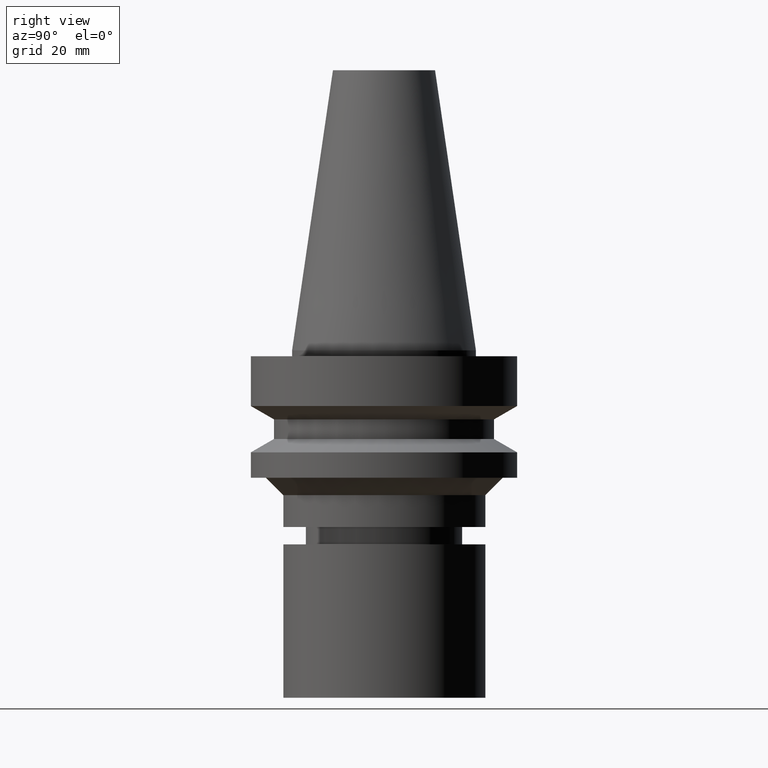
[diagram: clean part render]
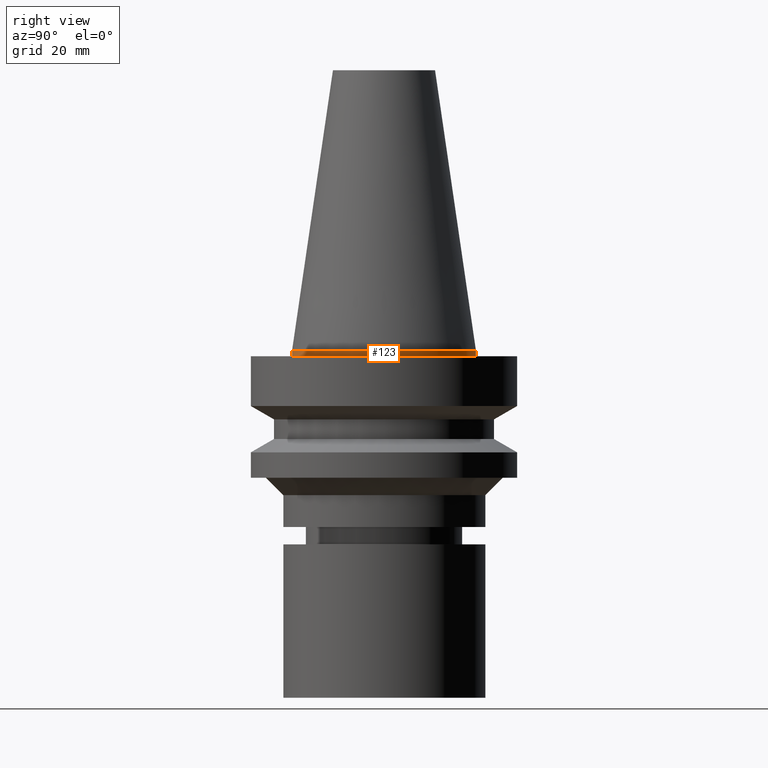
[diagram: same view with one face highlighted and labeled with its STEP entity id]
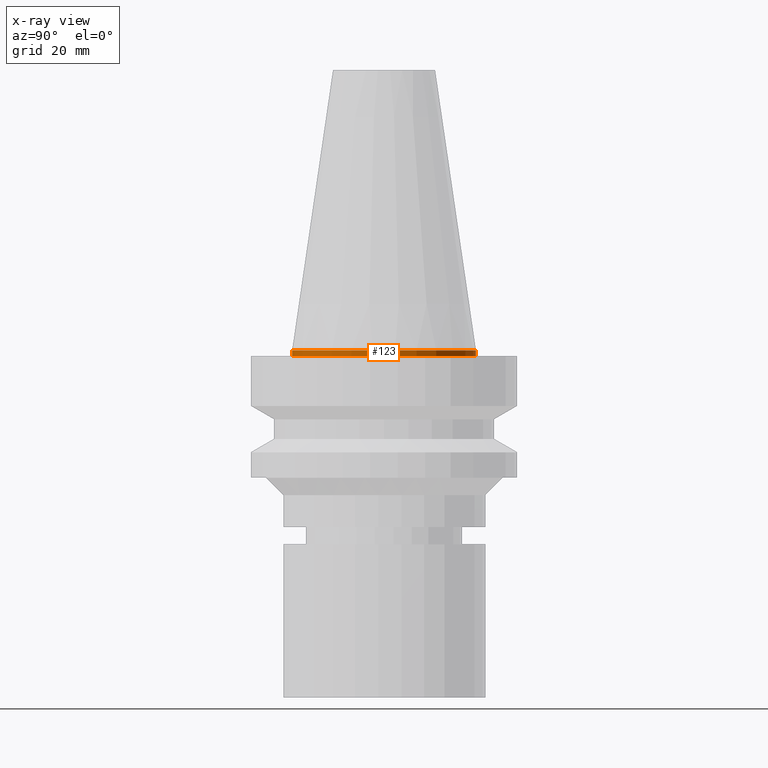
[diagram: x-ray of the same camera — body ghosted, the highlighted face saturated]
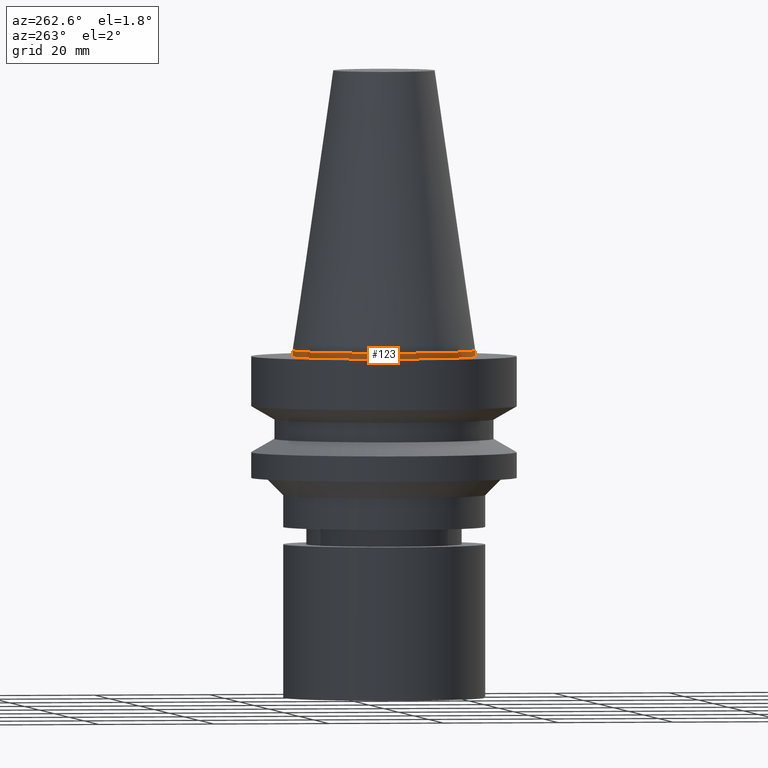
[diagram: same view with one face highlighted and labeled with its STEP entity id]
A machine part, right view. The second image highlights one B-rep face of the part: STEP entity #123.
The next image is the same camera in x-ray: the body ghosted, the highlighted face saturated — about 0% of this face is hidden behind the body in this view.
A second angle (auxiliary view) of the same face is appended — the face is thin or edge-on in the first view.
In plain terms, the highlighted cylindrical surface (bore or boss wall) has radius 15.875 mm, axis along (0, 0, -1).
Its self-contained STEP definition (entity closure, byte-faithful):
#123=ADVANCED_FACE('Unnamed[1]',(#274,#275),#276,.T.);
#152=EDGE_CURVE('Unnamed[1]',#319,#319,#320,.T.);
#180=EDGE_CURVE('Unnamed[1]',#362,#362,#363,.T.);
#274=FACE_BOUND('',#468,.T.);
#275=FACE_BOUND('',#469,.T.);
#276=CYLINDRICAL_SURFACE('',#470,15.875);
#319=VERTEX_POINT('',#523);
#320=CIRCLE('',#524,15.875);
#362=VERTEX_POINT('',#577);
#363=CIRCLE('',#578,15.875);
#468=EDGE_LOOP('',(#659));
#469=EDGE_LOOP('',(#660));
#470=AXIS2_PLACEMENT_3D('',#661,#662,#663);
#523=CARTESIAN_POINT('',(6.12323399573675E-017,15.875,-0.999999999999998));
#524=AXIS2_PLACEMENT_3D('',#709,#710,#711);
#577=CARTESIAN_POINT('',(-1.95674482349743E-031,15.875,1.94412679364642E-015));
#578=AXIS2_PLACEMENT_3D('',#758,#759,#760);
#659=ORIENTED_EDGE('',*,*,#152,.F.);
#660=ORIENTED_EDGE('',*,*,#180,.T.);
#661=CARTESIAN_POINT('',(3.06161699786838E-017,6.12323399573676E-017,-0.5));
#662=DIRECTION('',(6.12323399573677E-017,1.22464679914735E-016,-1.0));
#663=DIRECTION('',(-1.23259516440783E-032,1.0,1.22464679914735E-016));
#709=CARTESIAN_POINT('',(6.12323399573677E-017,1.22464679914735E-016,-1.0));
#710=DIRECTION('',(6.12323399573677E-017,1.22464679914735E-016,-1.0));
#711=DIRECTION('',(-1.23259516440783E-032,1.0,1.22464679914735E-016));
#758=CARTESIAN_POINT('',(0.0,0.0,0.0));
#759=DIRECTION('',(6.12323399573677E-017,1.22464679914735E-016,-1.0));
#760=DIRECTION('',(-1.23259516440783E-032,1.0,1.22464679914735E-016));